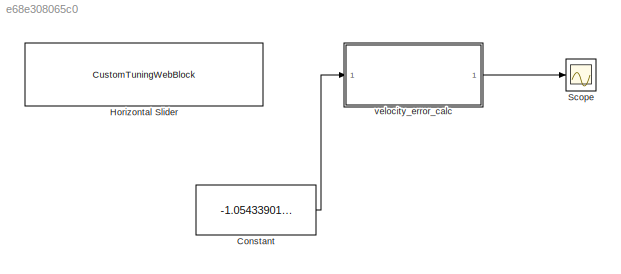
MODEL slx_e68e308065c0
KIND model
CONFIG AbsTol = auto
CONFIG EnableMultiTasking = off
CONFIG FixedStep = auto
CONFIG MaxStep = auto
CONFIG MinStep = auto
CONFIG RelTol = 1e-3
CONFIG SampleTimeConstraint = Unconstrained
CONFIG SolverName = VariableStepAuto
CONFIG StartTime = 0.0
CONFIG StopTime = inf
BLOCK [Constant] Constant
  Value = -1.054339010543401
BLOCK [CustomTuningWebBlock] Horizontal Slider
  Configuration = {"components":[{"name":"LinearScaleComponent","settings":{"bounds":{"max":100,"min":-100,"tickInterval":"auto"},"internalTickHeightScaleFactor":0.5,"labelColor":[255,255,200],"labelFont":{"font":"Arial","fontSize":12},"labelOffset":0.05,"labelTransparency":1,"needleImage":{"size":[596,842],"src":"data:image\/svg+xml;base64,PD94bWwgdmVyc2lvbj0iMS4wIiBlbmNvZGluZz0idXRmLTgiPz4NCjwhLS0gR2VuZXJhdG9yOiB...<+5772ch>
  LabelPosition = Hide
  ShowInitialText = on
BLOCK [Scope] Scope
  ActiveDisplayYMaximum = 1
  ActiveDisplayYMinimum = -1
  Floating = off
  GraphicalSettings = {"Style":{"BackgroundColor":[0.12941176470588237,0.12941176470588237,0.12941176470588237],"AxesColor":[0.07058823529411765,0.07058823529411765,0.07058823529411765],"LabelsColor":[0.8509803921568627,0.8509803921568627,0.8509803921568627],"PreserveColors":false,"Visible":[true],"LineStyle":["-"],"LineWidth":[1.5],"BarWidth":[0.9],"LineColor":["auto"],"LineFaceAlpha":[1],"LineEdgeAlpha":[1],"Marker":...<+1994ch>
  MultipleDisplayCache = [{"MaxYLimMag":1,"MaxYLimReal":1,"MinYLimMag":0,"MinYLimReal":-1,"PlotAsMagnitudePhase":false,"ShowGrid":true,"ShowLegend":false,"Title":"%<SignalLabel>","YLabel":""}]
  NumInputPorts = 1
  ScopeFrameLocation = window
  Visible = on
  WasSavedAsWebScope = on
  WindowPosition = [1040.000000,368.000000,560.000000,420.000000,]
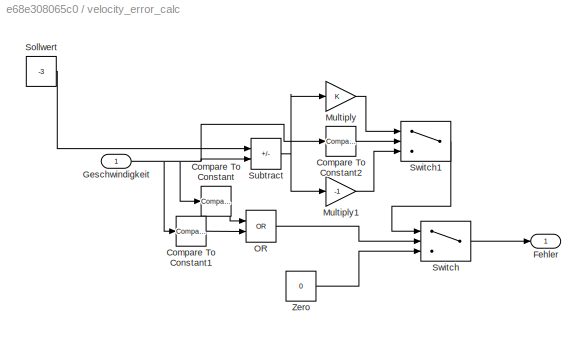
BLOCK [SubSystem] velocity_error_calc
BLOCK [Reference] velocity_error_calc/Compare To Constant  REF=simulink/Logic and Bit
Operations/Compare
To Constant
  SourceBlock = simulink/Logic and Bit\nOperations/Compare\nTo Constant
  SourceType = Compare To Constant
BLOCK [Reference] velocity_error_calc/Compare To Constant1  REF=simulink/Logic and Bit
Operations/Compare
To Constant
  SourceBlock = simulink/Logic and Bit\nOperations/Compare\nTo Constant
  SourceType = Compare To Constant
BLOCK [Reference] velocity_error_calc/Compare To Constant2  REF=simulink/Logic and Bit
Operations/Compare
To Constant
  SourceBlock = simulink/Logic and Bit\nOperations/Compare\nTo Constant
  SourceType = Compare To Constant
BLOCK [Outport] velocity_error_calc/Fehler
BLOCK [Inport] velocity_error_calc/Geschwindigkeit
BLOCK [Gain] velocity_error_calc/Multiply
BLOCK [Gain] velocity_error_calc/Multiply1
  Gain = -1
BLOCK [Logic] velocity_error_calc/OR
  AllPortsSameDT = off
  IconShape = distinctive
  Operator = OR
  OutDataTypeStr = boolean
BLOCK [Constant] velocity_error_calc/Sollwert
  Value = -3
BLOCK [Sum] velocity_error_calc/Subtract
  IconShape = rectangular
  Inputs = +-
BLOCK [Switch] velocity_error_calc/Switch
  Criteria = u2 > Threshold
  InputSameDT = off
  SaturateOnIntegerOverflow = off
BLOCK [Switch] velocity_error_calc/Switch1
  Criteria = u2 > Threshold
  InputSameDT = off
  NameLocation = top
  SaturateOnIntegerOverflow = off
BLOCK [Constant] velocity_error_calc/Zero
  Value = 0
LINE Constant:1 -> velocity_error_calc:1
LINE velocity_error_calc/Compare To Constant1:1 -> velocity_error_calc/OR:2
LINE velocity_error_calc/Compare To Constant2:1 -> velocity_error_calc/Switch1:2
LINE velocity_error_calc/Compare To Constant:1 -> velocity_error_calc/OR:1
NET velocity_error_calc/Geschwindigkeit:1 -> velocity_error_calc/Compare To Constant1:1, velocity_error_calc/Compare To Constant2:1, velocity_error_calc/Compare To Constant:1, velocity_error_calc/Subtract:2
LINE velocity_error_calc/Multiply1:1 -> velocity_error_calc/Switch1:3
LINE velocity_error_calc/Multiply:1 -> velocity_error_calc/Switch1:1
LINE velocity_error_calc/OR:1 -> velocity_error_calc/Switch:2
LINE velocity_error_calc/Sollwert:1 -> velocity_error_calc/Subtract:1
NET velocity_error_calc/Subtract:1 -> velocity_error_calc/Multiply1:1, velocity_error_calc/Multiply:1
LINE velocity_error_calc/Switch1:1 -> velocity_error_calc/Switch:1
LINE velocity_error_calc/Switch:1 -> velocity_error_calc/Fehler:1
LINE velocity_error_calc/Zero:1 -> velocity_error_calc/Switch:3
LINE velocity_error_calc:1 -> Scope:1
note: NET lines group one-source signal fan-out (src -> all destinations, sorted); 1:1 wires keep LINE
